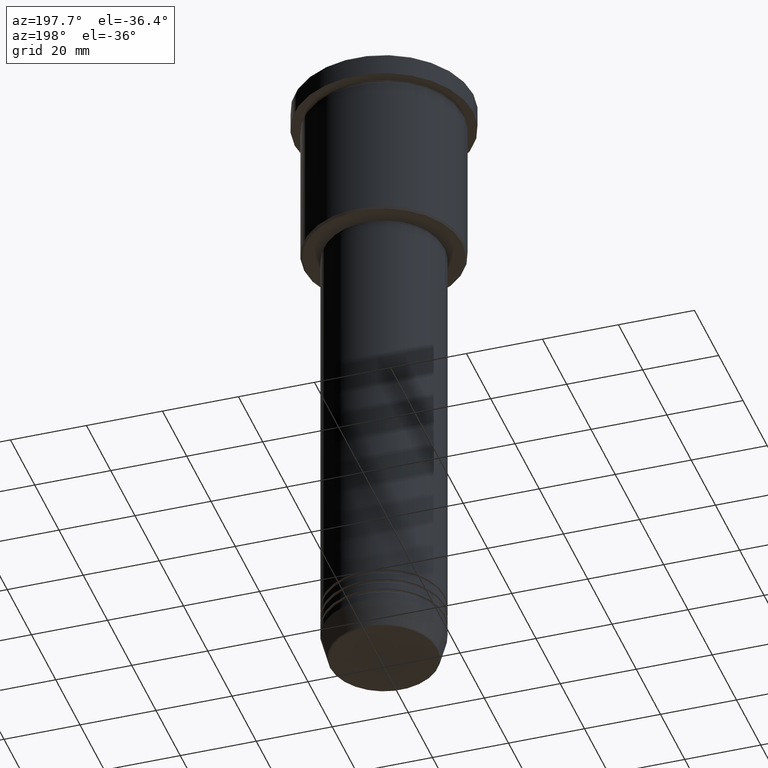
[diagram: clean part render]
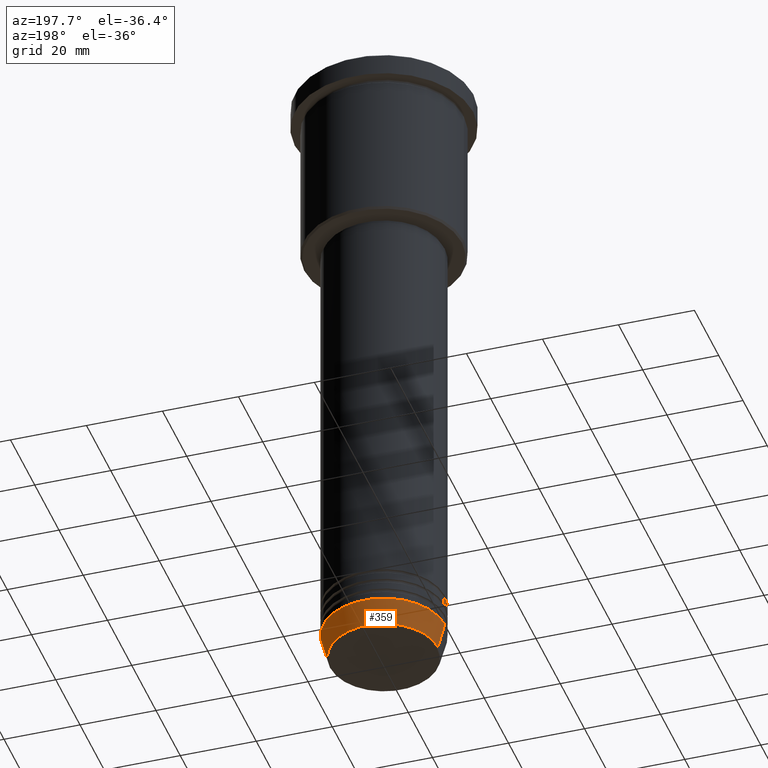
[diagram: same view with one face highlighted and labeled with its STEP entity id]
A machine part, auxiliary view. The second image highlights one B-rep face of the part: STEP entity #359.
In plain terms, the highlighted conical surface has half-angle 15 deg.
Its self-contained STEP definition (entity closure, byte-faithful):
#2 = CARTESIAN_POINT ( 'NONE',  ( 16.00000000000000000, 0.000000000000000000, -164.0000000000000000 ) ) ;
#13 = CARTESIAN_POINT ( 'NONE',  ( 14.22365507213719660, 0.000000000000000000, -170.6294095225512706 ) ) ;
#16 = LINE ( 'NONE', #200, #402 ) ;
#37 = ORIENTED_EDGE ( 'NONE', *, *, #510, .F. ) ;
#63 = AXIS2_PLACEMENT_3D ( 'NONE', #289, #465, #660 ) ;
#200 = CARTESIAN_POINT ( 'NONE',  ( -16.00000000000000000, 1.959434878635765131E-15, -164.0000000000000000 ) ) ;
#228 = AXIS2_PLACEMENT_3D ( 'NONE', #692, #1059, #541 ) ;
#289 = CARTESIAN_POINT ( 'NONE',  ( 0.000000000000000000, 0.000000000000000000, -170.6294095225512706 ) ) ;
#310 = VECTOR ( 'NONE', #907, 1000.000000000000000 ) ;
#319 = VERTEX_POINT ( 'NONE', #627 ) ;
#330 = FACE_OUTER_BOUND ( 'NONE', #884, .T. ) ;
#359 = ADVANCED_FACE ( 'NONE', ( #330 ), #745, .T. ) ;
#368 = ORIENTED_EDGE ( 'NONE', *, *, #829, .T. ) ;
#393 = VERTEX_POINT ( 'NONE', #1114 ) ;
#402 = VECTOR ( 'NONE', #554, 1000.000000000000000 ) ;
#419 = CIRCLE ( 'NONE', #63, 14.22365507213719660 ) ;
#427 = ORIENTED_EDGE ( 'NONE', *, *, #635, .F. ) ;
#465 = DIRECTION ( 'NONE',  ( -0.000000000000000000, -0.000000000000000000, 1.000000000000000000 ) ) ;
#466 = DIRECTION ( 'NONE',  ( 1.000000000000000000, 0.000000000000000000, 0.000000000000000000 ) ) ;
#510 = EDGE_CURVE ( 'NONE', #393, #955, #673, .T. ) ;
#541 = DIRECTION ( 'NONE',  ( 1.000000000000000000, 0.000000000000000000, 0.000000000000000000 ) ) ;
#554 = DIRECTION ( 'NONE',  ( -0.2588190451025213501, 3.169619151431772337E-17, 0.9659258262890680902 ) ) ;
#605 = VERTEX_POINT ( 'NONE', #13 ) ;
#627 = CARTESIAN_POINT ( 'NONE',  ( -14.22365507213719660, 1.850665122131324126E-15, -170.6294095225512706 ) ) ;
#635 = EDGE_CURVE ( 'NONE', #605, #393, #730, .T. ) ;
#660 = DIRECTION ( 'NONE',  ( 1.000000000000000000, 0.000000000000000000, 0.000000000000000000 ) ) ;
#669 = CARTESIAN_POINT ( 'NONE',  ( 0.000000000000000000, 0.000000000000000000, -164.0000000000000000 ) ) ;
#673 = CIRCLE ( 'NONE', #901, 16.00000000000000000 ) ;
#692 = CARTESIAN_POINT ( 'NONE',  ( 0.000000000000000000, 0.000000000000000000, -164.0000000000000000 ) ) ;
#730 = LINE ( 'NONE', #2, #310 ) ;
#745 = CONICAL_SURFACE ( 'NONE', #228, 16.00000000000000000, 0.2617993877991500740 ) ;
#829 = EDGE_CURVE ( 'NONE', #319, #955, #16, .T. ) ;
#884 = EDGE_LOOP ( 'NONE', ( #970, #368, #37, #427 ) ) ;
#901 = AXIS2_PLACEMENT_3D ( 'NONE', #669, #1104, #466 ) ;
#907 = DIRECTION ( 'NONE',  ( 0.2588190451025213501, 0.000000000000000000, 0.9659258262890680902 ) ) ;
#955 = VERTEX_POINT ( 'NONE', #974 ) ;
#970 = ORIENTED_EDGE ( 'NONE', *, *, #1119, .T. ) ;
#974 = CARTESIAN_POINT ( 'NONE',  ( -16.00000000000000000, 1.959434878635765131E-15, -164.0000000000000000 ) ) ;
#1059 = DIRECTION ( 'NONE',  ( -0.000000000000000000, -0.000000000000000000, 1.000000000000000000 ) ) ;
#1104 = DIRECTION ( 'NONE',  ( -0.000000000000000000, -0.000000000000000000, 1.000000000000000000 ) ) ;
#1114 = CARTESIAN_POINT ( 'NONE',  ( 16.00000000000000000, 0.000000000000000000, -164.0000000000000000 ) ) ;
#1119 = EDGE_CURVE ( 'NONE', #605, #319, #419, .T. ) ;